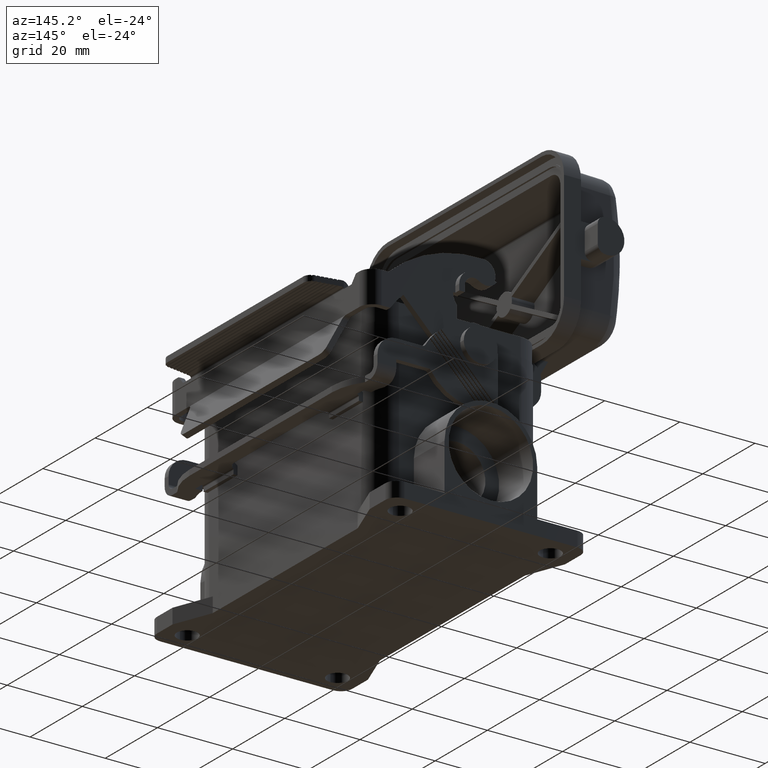
[diagram: clean part render]
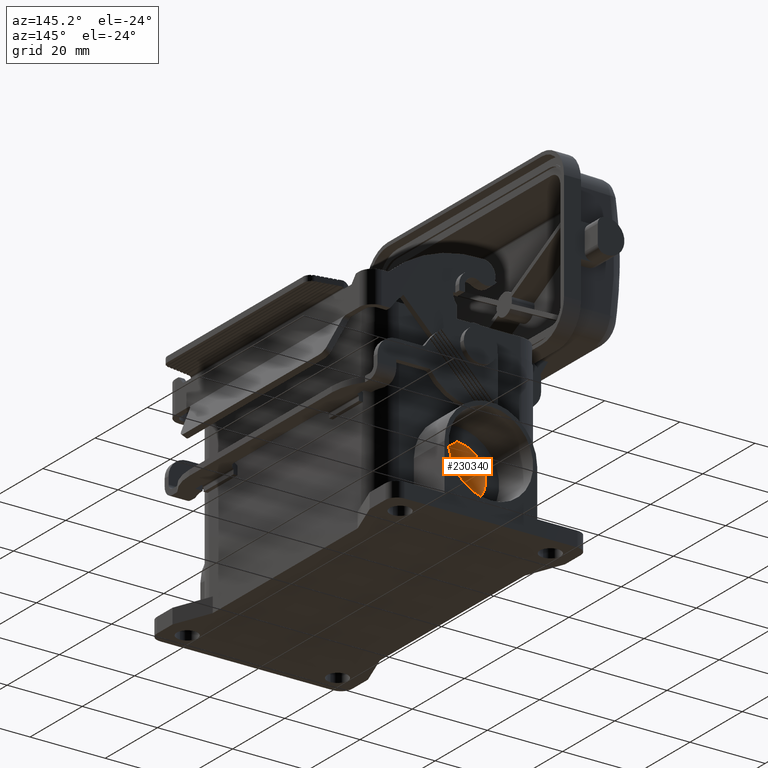
[diagram: same view with one face highlighted and labeled with its STEP entity id]
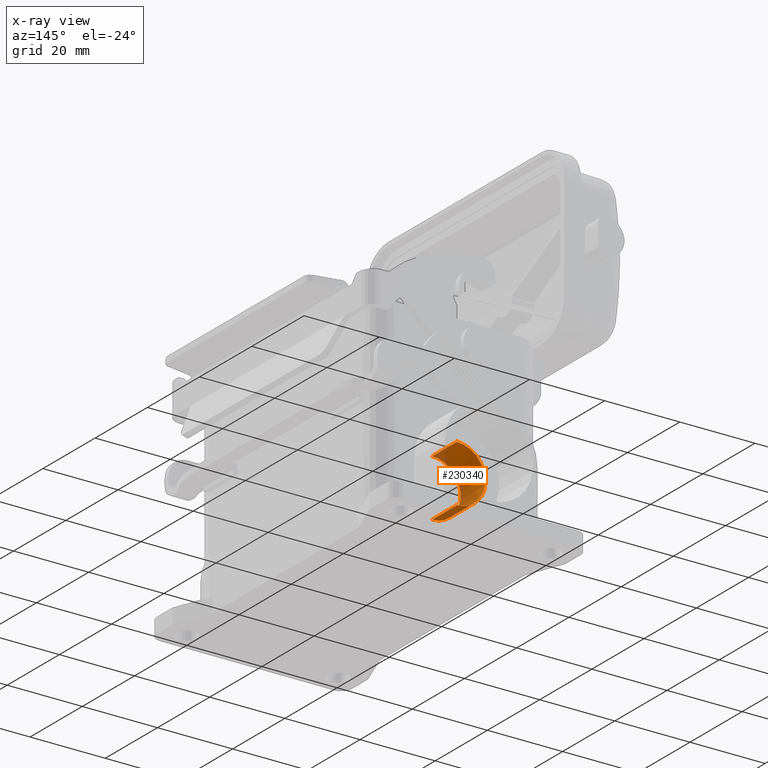
[diagram: x-ray of the same camera — body ghosted, the highlighted face saturated]
A machine part, auxiliary view. The second image highlights one B-rep face of the part: STEP entity #230340.
The next image is the same camera in x-ray: the body ghosted, the highlighted face saturated — about 40% of this face is hidden behind the body in this view.
In plain terms, the highlighted cylindrical surface (edge-blend (fillet) strip) has radius 7.58 mm, axis along (0, 1, 0).
Its self-contained STEP definition (entity closure, byte-faithful):
#229820=CARTESIAN_POINT('',(39.5,0.,-27.42));
#229830=DIRECTION('',(1.,0.,0.));
#229840=DIRECTION('',(0.,0.,1.));
#229850=AXIS2_PLACEMENT_3D('',#229820,#229830,#229840);
#229860=CIRCLE('',#229850,7.58000000000001);
#229870=CARTESIAN_POINT('',(39.5,0.,-19.84));
#229880=VERTEX_POINT('',#229870);
#229890=CARTESIAN_POINT('',(39.5,-9.28282273753695E-16,-35.));
#229900=VERTEX_POINT('',#229890);
#229930=EDGE_CURVE('',#229900,#229880,#229860,.T.);
#230030=CARTESIAN_POINT('',(33.5,0.,-27.42));
#230040=DIRECTION('',(1.,0.,0.));
#230050=DIRECTION('',(0.,0.,1.));
#230060=AXIS2_PLACEMENT_3D('',#230030,#230040,#230050);
#230070=CYLINDRICAL_SURFACE('',#230060,7.58000000000001);
#230080=CARTESIAN_POINT('',(33.5,-9.28282273753695E-16,-35.));
#230090=DIRECTION('',(1.,0.,0.));
#230100=VECTOR('',#230090,1.);
#230110=LINE('',#230080,#230100);
#230120=CARTESIAN_POINT('',(30.,-9.28282273753695E-16,-35.));
#230130=VERTEX_POINT('',#230120);
#230140=EDGE_CURVE('',#230130,#229900,#230110,.T.);
#230150=ORIENTED_EDGE('',*,*,#230140,.T.);
#230160=CARTESIAN_POINT('',(30.,0.,-27.42));
#230170=DIRECTION('',(1.,0.,0.));
#230180=DIRECTION('',(0.,0.,1.));
#230190=AXIS2_PLACEMENT_3D('',#230160,#230170,#230180);
#230200=CIRCLE('',#230190,7.58000000000001);
#230210=CARTESIAN_POINT('',(30.,0.,-19.84));
#230220=VERTEX_POINT('',#230210);
#230230=EDGE_CURVE('',#230130,#230220,#230200,.T.);
#230240=ORIENTED_EDGE('',*,*,#230230,.F.);
#230250=CARTESIAN_POINT('',(33.5,0.,-19.84));
#230260=DIRECTION('',(1.,0.,0.));
#230270=VECTOR('',#230260,1.);
#230280=LINE('',#230250,#230270);
#230290=EDGE_CURVE('',#230220,#229880,#230280,.T.);
#230300=ORIENTED_EDGE('',*,*,#230290,.F.);
#230310=ORIENTED_EDGE('',*,*,#229930,.T.);
#230320=EDGE_LOOP('',(#230310,#230300,#230240,#230150));
#230330=FACE_OUTER_BOUND('',#230320,.T.);
#230340=ADVANCED_FACE('',(#230330),#230070,.F.);